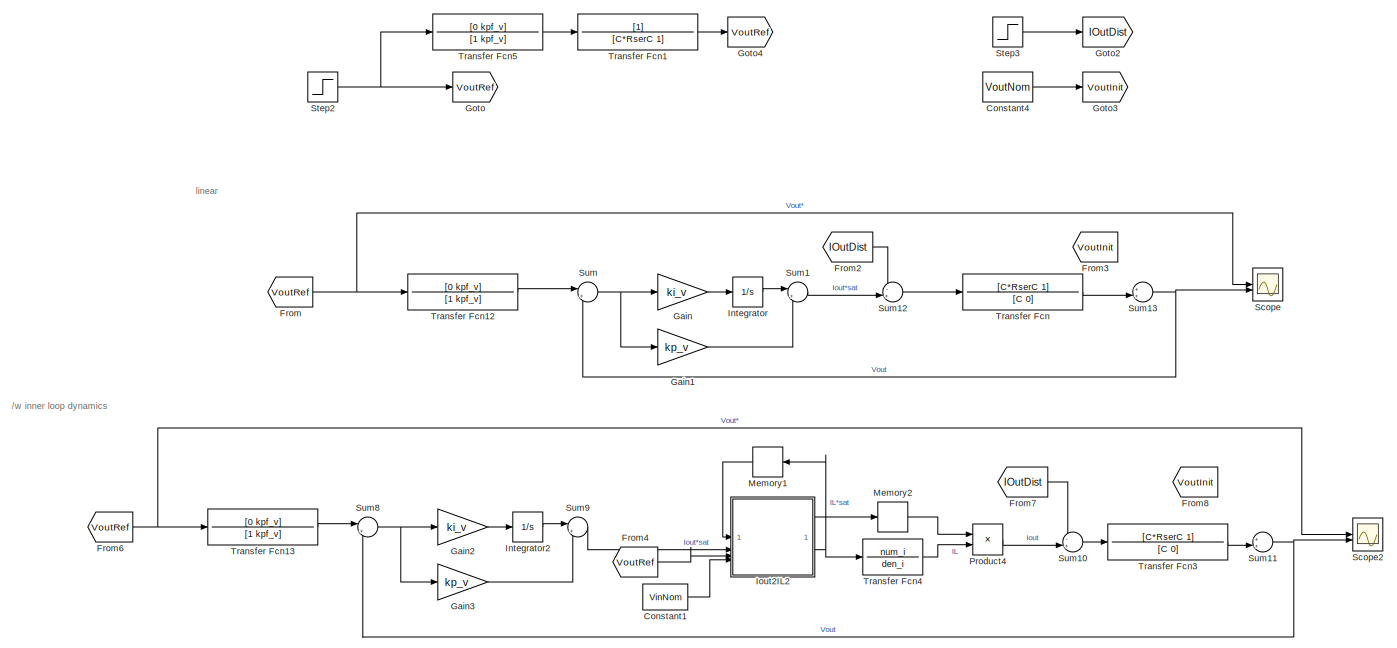
[diagram: root canvas - part 1/10, full width, top band]
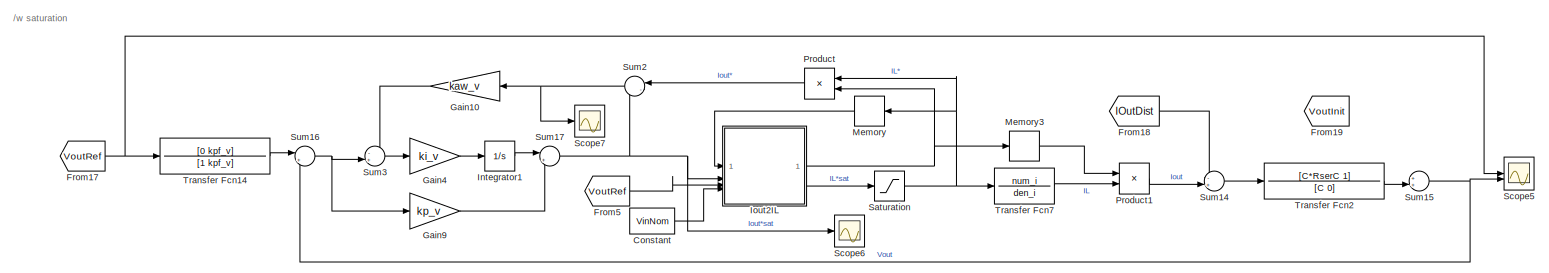
[diagram: root canvas - part 2/10, full width, middle band]
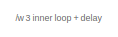
[diagram: root canvas - part 3/10, middle left region]
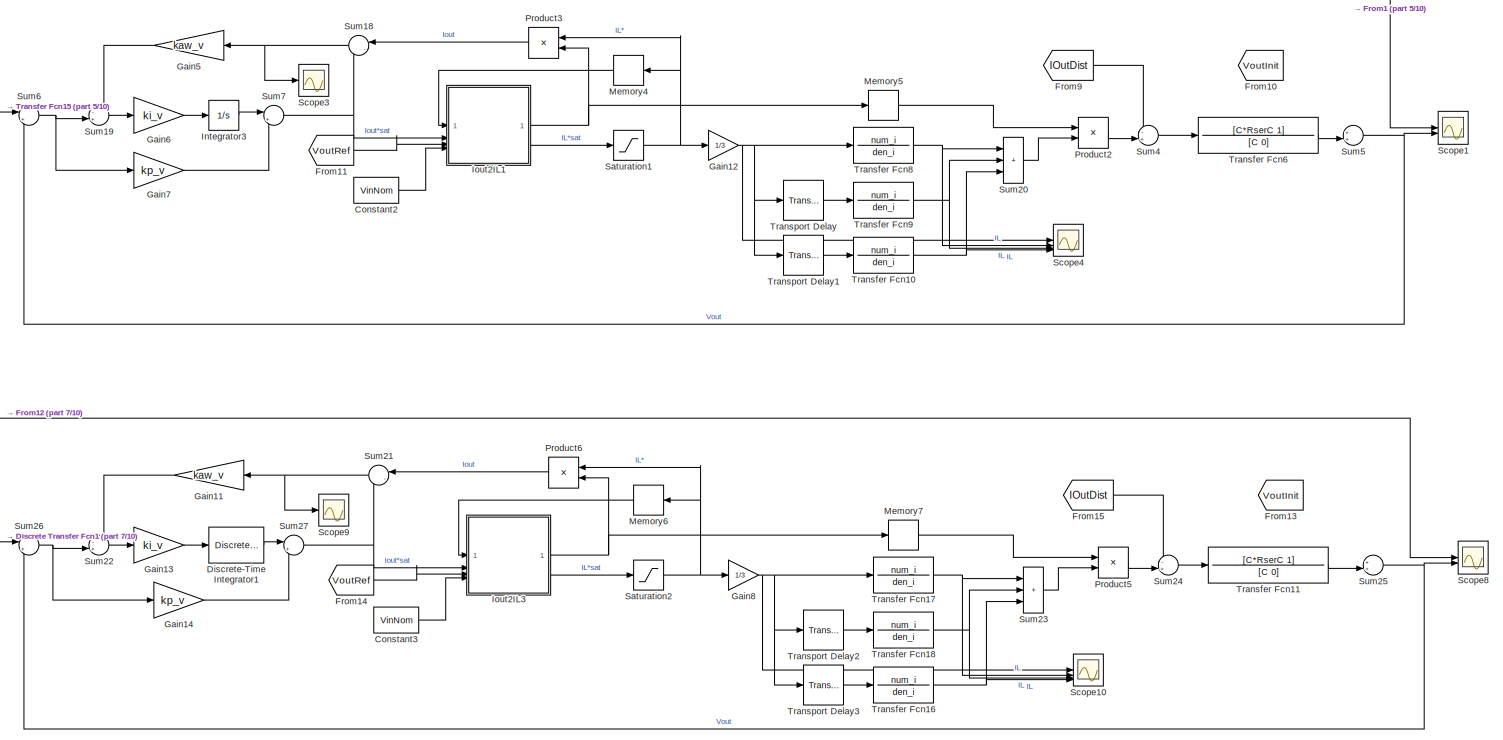
[diagram: root canvas - part 4/10, full width, middle band]
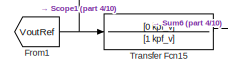
[diagram: root canvas - part 5/10, middle left region]
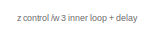
[diagram: root canvas - part 6/10, middle left region]
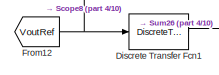
[diagram: root canvas - part 7/10, bottom left region]
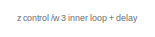
[diagram: root canvas - part 8/10, bottom left region]
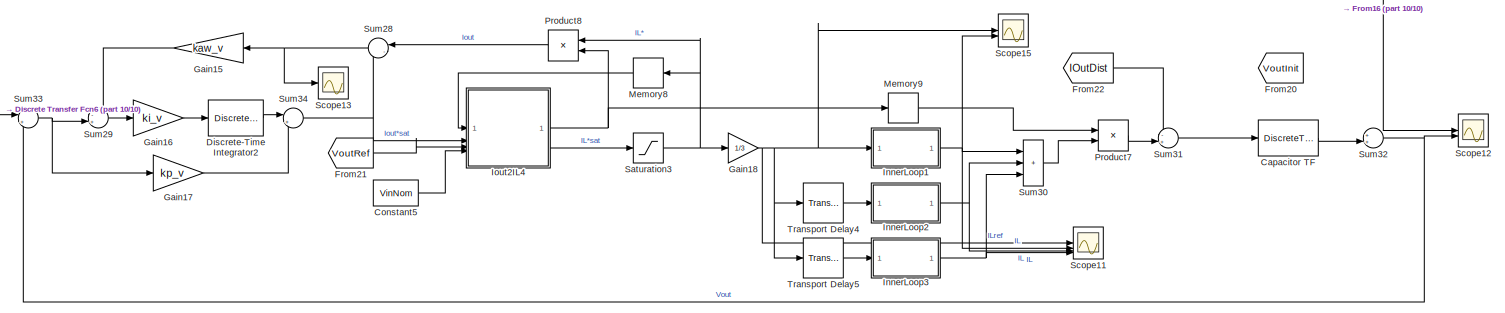
[diagram: root canvas - part 9/10, full width, bottom band]
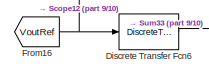
[diagram: root canvas - part 10/10, bottom left region]
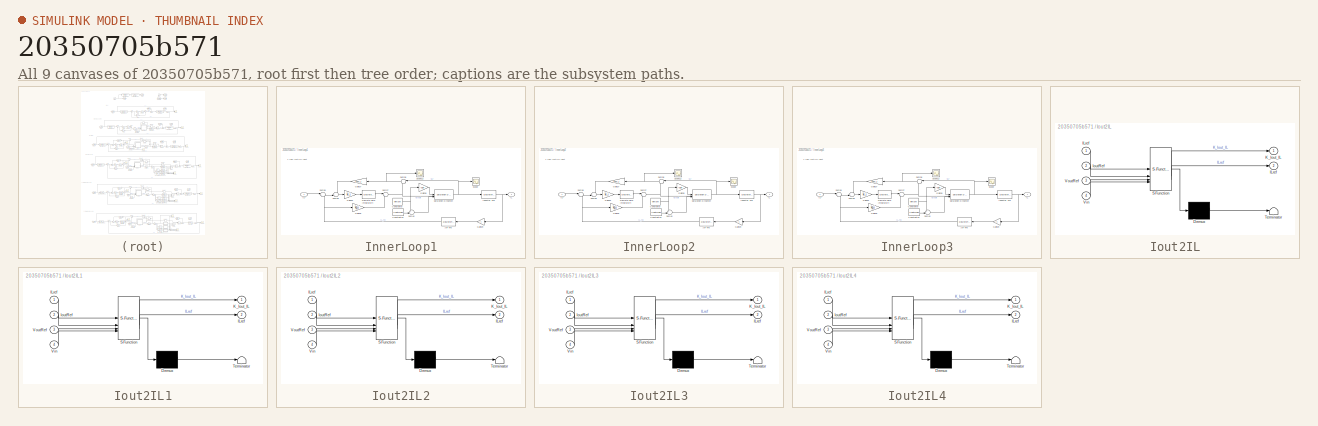
[diagram: thumbnail index - all 9 canvases of the model, root first then tree order]
MODEL slx_20350705b571
KIND model
CONFIG AbsTol = auto
CONFIG EnableMultiTasking = off
CONFIG FixedStep = Tstep
CONFIG MaxStep = auto
CONFIG MinStep = auto
CONFIG RelTol = 1e-3
CONFIG SampleTimeConstraint = Unconstrained
CONFIG SolverName = VariableStepAuto
CONFIG StartTime = 0.0
CONFIG StopTime = Tsim_outLoop
BLOCK [DiscreteTransferFcn] Capacitor TF
  Denominator = zden_plant_v
  InputPortMap = u0
  Numerator = znum_plant_v
BLOCK [Constant] Constant
  Value = VinNom
BLOCK [Constant] Constant1
  Value = VinNom
BLOCK [Constant] Constant2
  Value = VinNom
BLOCK [Constant] Constant3
  Value = VinNom
BLOCK [Constant] Constant4
  Value = VoutNom
BLOCK [Constant] Constant5
  Value = VinNom
BLOCK [DiscreteTransferFcn] Discrete Transfer Fcn1
  Denominator = zden_pf_v
  InputPortMap = u0
  Numerator = znum_pf_v
BLOCK [DiscreteTransferFcn] Discrete Transfer Fcn6
  Denominator = zden_pf_v
  InputPortMap = u0
  Numerator = znum_pf_v
BLOCK [DiscreteIntegrator] Discrete-Time Integrator1
  ICPrevOutput = DiscIntNeverNeededParam
  ICPrevScaledInput = DiscIntNeverNeededParam
  InitialConditionSetting = Auto
  IntegratorMethod = Integration: Trapezoidal
  SampleTime = Tsw
BLOCK [DiscreteIntegrator] Discrete-Time Integrator2
  ICPrevOutput = DiscIntNeverNeededParam
  ICPrevScaledInput = DiscIntNeverNeededParam
  InitialConditionSetting = Auto
  IntegratorMethod = Integration: Trapezoidal
  SampleTime = Tsw
BLOCK [From] From
  GotoTag = VoutRef
BLOCK [From] From1
  GotoTag = VoutRef
BLOCK [From] From10
  GotoTag = VoutInit
BLOCK [From] From11
  GotoTag = VoutRef
BLOCK [From] From12
  GotoTag = VoutRef
BLOCK [From] From13
  GotoTag = VoutInit
BLOCK [From] From14
  GotoTag = VoutRef
BLOCK [From] From15
  GotoTag = IOutDist
BLOCK [From] From16
  GotoTag = VoutRef
BLOCK [From] From17
  GotoTag = VoutRef
BLOCK [From] From18
  GotoTag = IOutDist
BLOCK [From] From19
  GotoTag = VoutInit
BLOCK [From] From2
  GotoTag = IOutDist
BLOCK [From] From20
  GotoTag = VoutInit
BLOCK [From] From21
  GotoTag = VoutRef
BLOCK [From] From22
  GotoTag = IOutDist
BLOCK [From] From3
  GotoTag = VoutInit
BLOCK [From] From4
  GotoTag = VoutRef
BLOCK [From] From5
  GotoTag = VoutRef
BLOCK [From] From6
  GotoTag = VoutRef
BLOCK [From] From7
  GotoTag = IOutDist
BLOCK [From] From8
  GotoTag = VoutInit
BLOCK [From] From9
  GotoTag = IOutDist
BLOCK [Gain] Gain
  Gain = ki_v
BLOCK [Gain] Gain1
  Gain = kp_v
BLOCK [Gain] Gain10
  Gain = kaw_v
  NameLocation = top
BLOCK [Gain] Gain11
  Gain = kaw_v
  NameLocation = top
BLOCK [Gain] Gain12
  Gain = 1/3
BLOCK [Gain] Gain13
  Gain = ki_v
BLOCK [Gain] Gain14
  Gain = kp_v
BLOCK [Gain] Gain15
  Gain = kaw_v
  NameLocation = top
BLOCK [Gain] Gain16
  Gain = ki_v
BLOCK [Gain] Gain17
  Gain = kp_v
BLOCK [Gain] Gain18
  Gain = 1/3
BLOCK [Gain] Gain2
  Gain = ki_v
BLOCK [Gain] Gain3
  Gain = kp_v
BLOCK [Gain] Gain4
  Gain = ki_v
BLOCK [Gain] Gain5
  Gain = kaw_v
  NameLocation = top
BLOCK [Gain] Gain6
  Gain = ki_v
BLOCK [Gain] Gain7
  Gain = kp_v
BLOCK [Gain] Gain8
  Gain = 1/3
BLOCK [Gain] Gain9
  Gain = kp_v
BLOCK [Goto] Goto
  GotoTag = VoutRef
BLOCK [Goto] Goto2
  GotoTag = IOutDist
BLOCK [Goto] Goto3
  GotoTag = VoutInit
BLOCK [Goto] Goto4
  Commented = on
  GotoTag = VoutRef
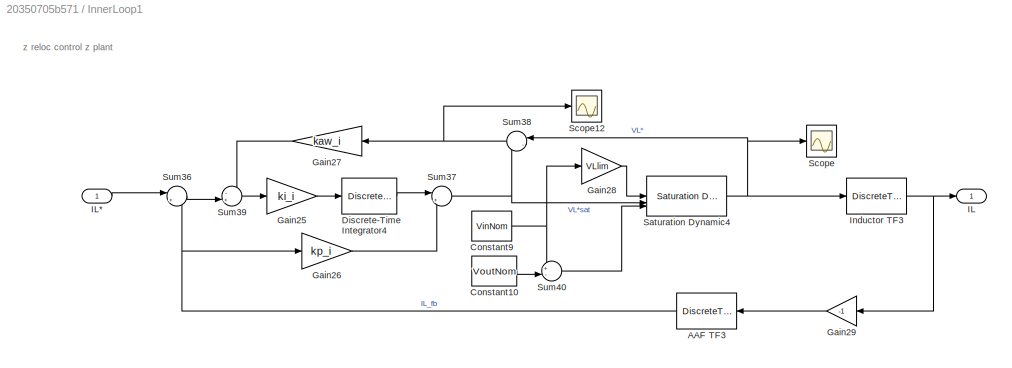
BLOCK [SubSystem] InnerLoop1
BLOCK [DiscreteTransferFcn] InnerLoop1/AAF TF3
  Denominator = zden_aaf
  InputPortMap = u0
  NameLocation = top
  Numerator = znum_aaf
BLOCK [Constant] InnerLoop1/Constant10
  Value = VoutNom
BLOCK [Constant] InnerLoop1/Constant9
  Value = VinNom
BLOCK [DiscreteIntegrator] InnerLoop1/Discrete-Time Integrator4
  ICPrevOutput = DiscIntNeverNeededParam
  ICPrevScaledInput = DiscIntNeverNeededParam
  InitialConditionSetting = Auto
  IntegratorMethod = Integration: Trapezoidal
  SampleTime = Tsw
BLOCK [Gain] InnerLoop1/Gain25
  Gain = ki_i
BLOCK [Gain] InnerLoop1/Gain26
  Gain = kp_i
BLOCK [Gain] InnerLoop1/Gain27
  Gain = kaw_i
  NameLocation = top
BLOCK [Gain] InnerLoop1/Gain28
  Gain = VLlim
BLOCK [Gain] InnerLoop1/Gain29
  Gain = -1
  NameLocation = top
BLOCK [Outport] InnerLoop1/IL
BLOCK [Inport] InnerLoop1/IL*
BLOCK [DiscreteTransferFcn] InnerLoop1/Inductor TF3
  Denominator = zden_plant_i
  InputPortMap = u0
  Numerator = znum_plant_i
BLOCK [Reference] InnerLoop1/Saturation Dynamic4  REF=simulink/Discontinuities/Saturation
Dynamic
  SourceBlock = simulink/Discontinuities/Saturation\nDynamic
  SourceType = Saturation Dynamic
BLOCK [Scope] InnerLoop1/Scope
  Floating = off
  NumInputPorts = 1
  ScopeSpecificationString = Simulink.scopes.TimeScopeBlockCfg('CurrentConfiguration', extmgr.ConfigurationSet(extmgr.Configuration('Core','General UI',true),extmgr.Configuration('Core','Source UI',true),extmgr.Configuration('Sources','WiredSimulink',true,'DataLoggingVariableName','ScopeData11'),extmgr.Configuration('Visuals','Time Domain',true,'SerializedDisplays',{struct('MinYLimReal','-2','MaxYLimReal','9','YLabelReal','',...<+1471ch>  <repeated x3 — deduplicated; at blocks: Scope>
BLOCK [Scope] InnerLoop1/Scope12
  Floating = off
  NumInputPorts = 1
  ScopeSpecificationString = Simulink.scopes.TimeScopeBlockCfg('CurrentConfiguration', extmgr.ConfigurationSet(extmgr.Configuration('Core','General UI',true),extmgr.Configuration('Core','Source UI',true),extmgr.Configuration('Sources','WiredSimulink',true,'DataLoggingVariableName','ScopeData9'),extmgr.Configuration('Visuals','Time Domain',true,'SerializedDisplays',{struct('MinYLimReal','-0.000000000000000011','MaxYLimReal','0...<+1557ch>  <repeated x3 — deduplicated; at blocks: Scope12>
BLOCK [Sum] InnerLoop1/Sum36
  Inputs = |+-
BLOCK [Sum] InnerLoop1/Sum37
  Inputs = |+-
BLOCK [Sum] InnerLoop1/Sum38
  Inputs = |-+
  NameLocation = top
BLOCK [Sum] InnerLoop1/Sum39
  Inputs = -+|
BLOCK [Sum] InnerLoop1/Sum40
  Inputs = +-|
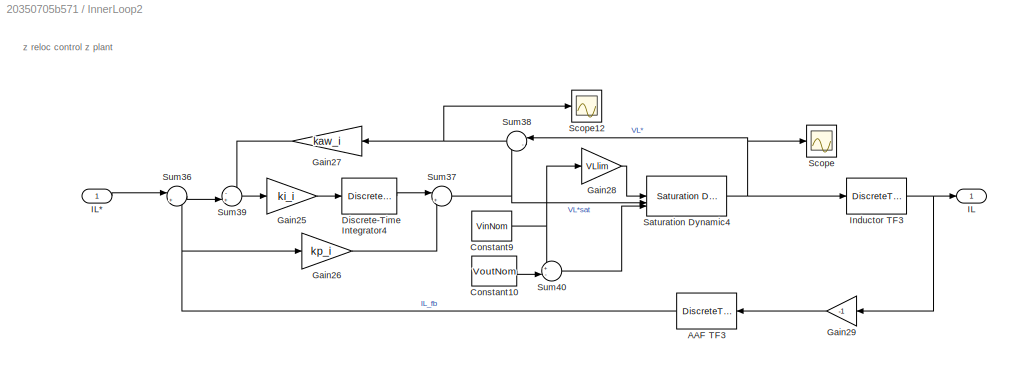
BLOCK [SubSystem] InnerLoop2
BLOCK [DiscreteTransferFcn] InnerLoop2/AAF TF3
  Denominator = zden_aaf
  InputPortMap = u0
  NameLocation = top
  Numerator = znum_aaf
BLOCK [Constant] InnerLoop2/Constant10
  Value = VoutNom
BLOCK [Constant] InnerLoop2/Constant9
  Value = VinNom
BLOCK [DiscreteIntegrator] InnerLoop2/Discrete-Time Integrator4
  ICPrevOutput = DiscIntNeverNeededParam
  ICPrevScaledInput = DiscIntNeverNeededParam
  InitialConditionSetting = Auto
  IntegratorMethod = Integration: Trapezoidal
  SampleTime = Tsw
BLOCK [Gain] InnerLoop2/Gain25
  Gain = ki_i
BLOCK [Gain] InnerLoop2/Gain26
  Gain = kp_i
BLOCK [Gain] InnerLoop2/Gain27
  Gain = kaw_i
  NameLocation = top
BLOCK [Gain] InnerLoop2/Gain28
  Gain = VLlim
BLOCK [Gain] InnerLoop2/Gain29
  Gain = -1
  NameLocation = top
BLOCK [Outport] InnerLoop2/IL
BLOCK [Inport] InnerLoop2/IL*
BLOCK [DiscreteTransferFcn] InnerLoop2/Inductor TF3
  Denominator = zden_plant_i
  InputPortMap = u0
  Numerator = znum_plant_i
BLOCK [Reference] InnerLoop2/Saturation Dynamic4  REF=simulink/Discontinuities/Saturation
Dynamic
  SourceBlock = simulink/Discontinuities/Saturation\nDynamic
  SourceType = Saturation Dynamic
BLOCK [Scope] InnerLoop2/Scope
  Floating = off
  NumInputPorts = 1
BLOCK [Scope] InnerLoop2/Scope12
  Floating = off
  NumInputPorts = 1
BLOCK [Sum] InnerLoop2/Sum36
  Inputs = |+-
BLOCK [Sum] InnerLoop2/Sum37
  Inputs = |+-
BLOCK [Sum] InnerLoop2/Sum38
  Inputs = |-+
  NameLocation = top
BLOCK [Sum] InnerLoop2/Sum39
  Inputs = -+|
BLOCK [Sum] InnerLoop2/Sum40
  Inputs = +-|
BLOCK [SubSystem] InnerLoop3
BLOCK [DiscreteTransferFcn] InnerLoop3/AAF TF3
  Denominator = zden_aaf
  InputPortMap = u0
  NameLocation = top
  Numerator = znum_aaf
BLOCK [Constant] InnerLoop3/Constant10
  Value = VoutNom
BLOCK [Constant] InnerLoop3/Constant9
  Value = VinNom
BLOCK [DiscreteIntegrator] InnerLoop3/Discrete-Time Integrator4
  ICPrevOutput = DiscIntNeverNeededParam
  ICPrevScaledInput = DiscIntNeverNeededParam
  InitialConditionSetting = Auto
  IntegratorMethod = Integration: Trapezoidal
  SampleTime = Tsw
BLOCK [Gain] InnerLoop3/Gain25
  Gain = ki_i
BLOCK [Gain] InnerLoop3/Gain26
  Gain = kp_i
BLOCK [Gain] InnerLoop3/Gain27
  Gain = kaw_i
  NameLocation = top
BLOCK [Gain] InnerLoop3/Gain28
  Gain = VLlim
BLOCK [Gain] InnerLoop3/Gain29
  Gain = -1
  NameLocation = top
BLOCK [Outport] InnerLoop3/IL
BLOCK [Inport] InnerLoop3/IL*
BLOCK [DiscreteTransferFcn] InnerLoop3/Inductor TF3
  Denominator = zden_plant_i
  InputPortMap = u0
  Numerator = znum_plant_i
BLOCK [Reference] InnerLoop3/Saturation Dynamic4  REF=simulink/Discontinuities/Saturation
Dynamic
  SourceBlock = simulink/Discontinuities/Saturation\nDynamic
  SourceType = Saturation Dynamic
BLOCK [Scope] InnerLoop3/Scope
  Floating = off
  NumInputPorts = 1
BLOCK [Scope] InnerLoop3/Scope12
  Floating = off
  NumInputPorts = 1
BLOCK [Sum] InnerLoop3/Sum36
  Inputs = |+-
BLOCK [Sum] InnerLoop3/Sum37
  Inputs = |+-
BLOCK [Sum] InnerLoop3/Sum38
  Inputs = |-+
  NameLocation = top
BLOCK [Sum] InnerLoop3/Sum39
  Inputs = -+|
BLOCK [Sum] InnerLoop3/Sum40
  Inputs = +-|
BLOCK [Integrator] Integrator
BLOCK [Integrator] Integrator1
BLOCK [Integrator] Integrator2
BLOCK [Integrator] Integrator3
BLOCK [SubSystem] Iout2IL
  ErrorFcn = Stateflow.Translate.translate
  PermitHierarchicalResolution = ExplicitOnly
  SFBlockType = MATLAB Function
  TreatAsAtomicUnit = on
BLOCK [Demux] Iout2IL/ Demux 
  Outputs = 1
BLOCK [S-Function] Iout2IL/ SFunction 
  EnableBusSupport = on
  FunctionName = sf_sfun
  Parameters = RserL
  PortCounts = [4 3]
  SFcnIsStateOwnerBlock = off
  SFunctionDeploymentMode = off
  Tag = Stateflow S-Function 3
BLOCK [Terminator] Iout2IL/ Terminator 
BLOCK [Outport] Iout2IL/ILref
  Port = 2
  VectorParamsAs1DForOutWhenUnconnected = off
BLOCK [Inport] Iout2IL/ILref 
BLOCK [Inport] Iout2IL/IoutRef
  Port = 2
BLOCK [Outport] Iout2IL/K_Iout_IL
  VectorParamsAs1DForOutWhenUnconnected = off
BLOCK [Inport] Iout2IL/Vin
  Port = 4
BLOCK [Inport] Iout2IL/VoutRef
  Port = 3
BLOCK [SubSystem] Iout2IL1
  ErrorFcn = Stateflow.Translate.translate
  PermitHierarchicalResolution = ExplicitOnly
  SFBlockType = MATLAB Function
  TreatAsAtomicUnit = on
BLOCK [Demux] Iout2IL1/ Demux 
  Outputs = 1
BLOCK [S-Function] Iout2IL1/ SFunction 
  EnableBusSupport = on
  FunctionName = sf_sfun
  Parameters = RserL
  PortCounts = [4 3]
  SFcnIsStateOwnerBlock = off
  SFunctionDeploymentMode = off
  Tag = Stateflow S-Function 1
BLOCK [Terminator] Iout2IL1/ Terminator 
BLOCK [Outport] Iout2IL1/ILref
  Port = 2
  VectorParamsAs1DForOutWhenUnconnected = off
BLOCK [Inport] Iout2IL1/ILref 
BLOCK [Inport] Iout2IL1/IoutRef
  Port = 2
BLOCK [Outport] Iout2IL1/K_Iout_IL
  VectorParamsAs1DForOutWhenUnconnected = off
BLOCK [Inport] Iout2IL1/Vin
  Port = 4
BLOCK [Inport] Iout2IL1/VoutRef
  Port = 3
BLOCK [SubSystem] Iout2IL2
  ErrorFcn = Stateflow.Translate.translate
  PermitHierarchicalResolution = ExplicitOnly
  SFBlockType = MATLAB Function
  TreatAsAtomicUnit = on
BLOCK [Demux] Iout2IL2/ Demux 
  Outputs = 1
BLOCK [S-Function] Iout2IL2/ SFunction 
  EnableBusSupport = on
  FunctionName = sf_sfun
  Parameters = RserL
  PortCounts = [4 3]
  SFcnIsStateOwnerBlock = off
  SFunctionDeploymentMode = off
  Tag = Stateflow S-Function 2
BLOCK [Terminator] Iout2IL2/ Terminator 
BLOCK [Outport] Iout2IL2/ILref
  Port = 2
  VectorParamsAs1DForOutWhenUnconnected = off
BLOCK [Inport] Iout2IL2/ILref 
BLOCK [Inport] Iout2IL2/IoutRef
  Port = 2
BLOCK [Outport] Iout2IL2/K_Iout_IL
  VectorParamsAs1DForOutWhenUnconnected = off
BLOCK [Inport] Iout2IL2/Vin
  Port = 4
BLOCK [Inport] Iout2IL2/VoutRef
  Port = 3
BLOCK [SubSystem] Iout2IL3
  ErrorFcn = Stateflow.Translate.translate
  PermitHierarchicalResolution = ExplicitOnly
  SFBlockType = MATLAB Function
  TreatAsAtomicUnit = on
BLOCK [Demux] Iout2IL3/ Demux 
  Outputs = 1
BLOCK [S-Function] Iout2IL3/ SFunction 
  EnableBusSupport = on
  FunctionName = sf_sfun
  Parameters = RserL
  PortCounts = [4 3]
  SFcnIsStateOwnerBlock = off
  SFunctionDeploymentMode = off
  Tag = Stateflow S-Function 4
BLOCK [Terminator] Iout2IL3/ Terminator 
BLOCK [Outport] Iout2IL3/ILref
  Port = 2
  VectorParamsAs1DForOutWhenUnconnected = off
BLOCK [Inport] Iout2IL3/ILref 
BLOCK [Inport] Iout2IL3/IoutRef
  Port = 2
BLOCK [Outport] Iout2IL3/K_Iout_IL
  VectorParamsAs1DForOutWhenUnconnected = off
BLOCK [Inport] Iout2IL3/Vin
  Port = 4
BLOCK [Inport] Iout2IL3/VoutRef
  Port = 3
BLOCK [SubSystem] Iout2IL4
  ErrorFcn = Stateflow.Translate.translate
  PermitHierarchicalResolution = ExplicitOnly
  SFBlockType = MATLAB Function
  TreatAsAtomicUnit = on
BLOCK [Demux] Iout2IL4/ Demux 
  Outputs = 1
BLOCK [S-Function] Iout2IL4/ SFunction 
  EnableBusSupport = on
  FunctionName = sf_sfun
  Parameters = RserL
  PortCounts = [4 3]
  SFcnIsStateOwnerBlock = off
  SFunctionDeploymentMode = off
  Tag = Stateflow S-Function 5
BLOCK [Terminator] Iout2IL4/ Terminator 
BLOCK [Outport] Iout2IL4/ILref
  Port = 2
  VectorParamsAs1DForOutWhenUnconnected = off
BLOCK [Inport] Iout2IL4/ILref 
BLOCK [Inport] Iout2IL4/IoutRef
  Port = 2
BLOCK [Outport] Iout2IL4/K_Iout_IL
  VectorParamsAs1DForOutWhenUnconnected = off
BLOCK [Inport] Iout2IL4/Vin
  Port = 4
BLOCK [Inport] Iout2IL4/VoutRef
  Port = 3
BLOCK [Memory] Memory
  NameLocation = top
BLOCK [Memory] Memory1
BLOCK [Memory] Memory2
  InitialCondition = 1
  NameLocation = top
BLOCK [Memory] Memory3
  InitialCondition = 1
  NameLocation = top
BLOCK [Memory] Memory4
  NameLocation = top
BLOCK [Memory] Memory5
  InitialCondition = 1
  NameLocation = top
BLOCK [Memory] Memory6
  NameLocation = top
BLOCK [Memory] Memory7
  InitialCondition = 1
  NameLocation = top
BLOCK [Memory] Memory8
  NameLocation = top
BLOCK [Memory] Memory9
  InitialCondition = 1
  NameLocation = top
BLOCK [Product] Product
  NameLocation = top
BLOCK [Product] Product1
BLOCK [Product] Product2
BLOCK [Product] Product3
  NameLocation = top
BLOCK [Product] Product4
BLOCK [Product] Product5
BLOCK [Product] Product6
  NameLocation = top
BLOCK [Product] Product7
BLOCK [Product] Product8
  NameLocation = top
BLOCK [Saturate] Saturation
  LowerLimit = -ILmax
  UpperLimit = ILmax
BLOCK [Saturate] Saturation1
  LowerLimit = -ILmax
  UpperLimit = ILmax
BLOCK [Saturate] Saturation2
  LowerLimit = -ILmax
  UpperLimit = ILmax
BLOCK [Saturate] Saturation3
  LowerLimit = -ILmax
  UpperLimit = ILmax
BLOCK [Scope] Scope
  Floating = off
  NumInputPorts = 2
  ScopeSpecificationString = Simulink.scopes.TimeScopeBlockCfg('CurrentConfiguration', extmgr.ConfigurationSet(extmgr.Configuration('Core','General UI',true),extmgr.Configuration('Core','Source UI',true),extmgr.Configuration('Sources','WiredSimulink',true,'DataLoggingVariableName','ScopeData1'),extmgr.Configuration('Visuals','Time Domain',true,'SerializedDisplays',{struct('MinYLimReal','-6.24693','MaxYLimReal','56.22241','YLa...<+1446ch>
BLOCK [Scope] Scope1
  Floating = off
  NumInputPorts = 2
  ScopeSpecificationString = Simulink.scopes.TimeScopeBlockCfg('CurrentConfiguration', extmgr.ConfigurationSet(extmgr.Configuration('Core','General UI',true),extmgr.Configuration('Core','Source UI',true),extmgr.Configuration('Sources','WiredSimulink',true,'DataLoggingVariableName','ScopeData1'),extmgr.Configuration('Visuals','Time Domain',true,'SerializedDisplays',{struct('MinYLimReal','-6.45366','MaxYLimReal','58.0829','YLab...<+1531ch>
BLOCK [Scope] Scope10
  Floating = off
  NumInputPorts = 4
  ScopeSpecificationString = Simulink.scopes.TimeScopeBlockCfg('CurrentConfiguration', extmgr.ConfigurationSet(extmgr.Configuration('Core','General UI',true),extmgr.Configuration('Core','Source UI',true),extmgr.Configuration('Sources','WiredSimulink',true,'DataLoggingVariableName','ScopeData1'),extmgr.Configuration('Visuals','Time Domain',true,'SerializedDisplays',{struct('MinYLimReal','-0.0999','MaxYLimReal','0.77357','YLabe...<+1447ch>
BLOCK [Scope] Scope11
  Floating = off
  NumInputPorts = 4
  ScopeSpecificationString = Simulink.scopes.TimeScopeBlockCfg('CurrentConfiguration', extmgr.ConfigurationSet(extmgr.Configuration('Core','General UI',true),extmgr.Configuration('Core','Source UI',true),extmgr.Configuration('Sources','WiredSimulink',true,'DataLoggingVariableName','ScopeData4'),extmgr.Configuration('Visuals','Time Domain',true,'SerializedDisplays',{struct('MinYLimReal','-11518861928806719007186475254290325415...<+3957ch>
BLOCK [Scope] Scope12
  Floating = off
  NumInputPorts = 2
  ScopeSpecificationString = Simulink.scopes.TimeScopeBlockCfg('CurrentConfiguration', extmgr.ConfigurationSet(extmgr.Configuration('Core','General UI',true),extmgr.Configuration('Core','Source UI',true),extmgr.Configuration('Sources','WiredSimulink',true,'DataLoggingVariableName','ScopeData5'),extmgr.Configuration('Visuals','Time Domain',true,'SerializedDisplays',{struct('MinYLimReal','-6.44082','MaxYLimReal','57.96738','YLa...<+1534ch>
BLOCK [Scope] Scope13
  Floating = off
  NumInputPorts = 1
  ScopeSpecificationString = Simulink.scopes.TimeScopeBlockCfg('CurrentConfiguration', extmgr.ConfigurationSet(extmgr.Configuration('Core','General UI',true),extmgr.Configuration('Core','Source UI',true),extmgr.Configuration('Sources','WiredSimulink',true,'DataLoggingVariableName','ScopeData6'),extmgr.Configuration('Visuals','Time Domain',true,'SerializedDisplays',{struct('MinYLimReal','-0.00000000009','MaxYLimReal','0.000000...<+1620ch>
BLOCK [Scope] Scope15
  Floating = off
  NumInputPorts = 2
  ScopeSpecificationString = Simulink.scopes.TimeScopeBlockCfg('CurrentConfiguration', extmgr.ConfigurationSet(extmgr.Configuration('Core','General UI',true),extmgr.Configuration('Core','Source UI',true),extmgr.Configuration('Sources','WiredSimulink',true,'DataLoggingVariableName','ScopeData8'),extmgr.Configuration('Visuals','Time Domain',true,'SerializedDisplays',{struct('MinYLimReal','-0.27083','MaxYLimReal','1.50086','YLab...<+1501ch>
BLOCK [Scope] Scope2
  Floating = off
  NumInputPorts = 2
  ScopeSpecificationString = Simulink.scopes.TimeScopeBlockCfg('CurrentConfiguration', extmgr.ConfigurationSet(extmgr.Configuration('Core','General UI',true),extmgr.Configuration('Core','Source UI',true),extmgr.Configuration('Sources','WiredSimulink',true,'DataLoggingVariableName','ScopeData1'),extmgr.Configuration('Visuals','Time Domain',true,'SerializedDisplays',{struct('MinYLimReal','-6.29289','MaxYLimReal','56.63599','YLa...<+1446ch>
BLOCK [Scope] Scope3
  Floating = off
  NumInputPorts = 1
  ScopeSpecificationString = Simulink.scopes.TimeScopeBlockCfg('CurrentConfiguration', extmgr.ConfigurationSet(extmgr.Configuration('Core','General UI',true),extmgr.Configuration('Core','Source UI',true),extmgr.Configuration('Sources','WiredSimulink',true,'DataLoggingVariableName','ScopeData2'),extmgr.Configuration('Visuals','Time Domain',true,'SerializedDisplays',{struct('MinYLimReal','-0.0000000000000011','MaxYLimReal','0.0...<+1570ch>
BLOCK [Scope] Scope4
  Floating = off
  NumInputPorts = 4
  ScopeSpecificationString = Simulink.scopes.TimeScopeBlockCfg('CurrentConfiguration', extmgr.ConfigurationSet(extmgr.Configuration('Core','General UI',true),extmgr.Configuration('Core','Source UI',true),extmgr.Configuration('Sources','WiredSimulink',true,'DataLoggingVariableName','ScopeData3'),extmgr.Configuration('Visuals','Time Domain',true,'SerializedDisplays',{struct('MinYLimReal','-0.0999','MaxYLimReal','0.77357','YLabe...<+1447ch>
BLOCK [Scope] Scope5
  Floating = off
  NumInputPorts = 2
  ScopeSpecificationString = Simulink.scopes.TimeScopeBlockCfg('CurrentConfiguration', extmgr.ConfigurationSet(extmgr.Configuration('Core','General UI',true),extmgr.Configuration('Core','Source UI',true),extmgr.Configuration('Sources','WiredSimulink',true,'DataLoggingVariableName','ScopeData1'),extmgr.Configuration('Visuals','Time Domain',true,'SerializedDisplays',{struct('MinYLimReal','-6.30349','MaxYLimReal','56.73139','YLa...<+1454ch>
BLOCK [Scope] Scope6
  Floating = off
  NumInputPorts = 1
  ScopeSpecificationString = Simulink.scopes.TimeScopeBlockCfg('CurrentConfiguration', extmgr.ConfigurationSet(extmgr.Configuration('Core','General UI',true),extmgr.Configuration('Core','Source UI',true),extmgr.Configuration('Sources','WiredSimulink',true,'DataLoggingVariableName','ScopeData1'),extmgr.Configuration('Visuals','Time Domain',true,'SerializedDisplays',{struct('MinYLimReal','-4.58852','MaxYLimReal','21.01494','YLa...<+1371ch>
BLOCK [Scope] Scope7
  Floating = off
  NumInputPorts = 1
  ScopeSpecificationString = Simulink.scopes.TimeScopeBlockCfg('CurrentConfiguration', extmgr.ConfigurationSet(extmgr.Configuration('Core','General UI',true),extmgr.Configuration('Core','Source UI',true),extmgr.Configuration('Sources','WiredSimulink',true,'DataLoggingVariableName','ScopeData2'),extmgr.Configuration('Visuals','Time Domain',true,'SerializedDisplays',{struct('MinYLimReal','-0.0000000000000011','MaxYLimReal','0.0...<+1570ch>
BLOCK [Scope] Scope8
  Floating = off
  NumInputPorts = 2
  ScopeSpecificationString = Simulink.scopes.TimeScopeBlockCfg('CurrentConfiguration', extmgr.ConfigurationSet(extmgr.Configuration('Core','General UI',true),extmgr.Configuration('Core','Source UI',true),extmgr.Configuration('Sources','WiredSimulink',true,'DataLoggingVariableName','ScopeData2'),extmgr.Configuration('Visuals','Time Domain',true,'SerializedDisplays',{struct('MinYLimReal','-6.45768','MaxYLimReal','58.11909','YLa...<+1534ch>
BLOCK [Scope] Scope9
  Floating = off
  NumInputPorts = 1
  ScopeSpecificationString = Simulink.scopes.TimeScopeBlockCfg('CurrentConfiguration', extmgr.ConfigurationSet(extmgr.Configuration('Core','General UI',true),extmgr.Configuration('Core','Source UI',true),extmgr.Configuration('Sources','WiredSimulink',true,'DataLoggingVariableName','ScopeData3'),extmgr.Configuration('Visuals','Time Domain',true,'SerializedDisplays',{struct('MinYLimReal','-0.0000000000000011','MaxYLimReal','0.0...<+1570ch>
BLOCK [Step] Step2
  After = VoutNom
  Before = VinNom
  SampleTime = 0
  Time = 0.1
BLOCK [Step] Step3
  After = ILnom/3
  SampleTime = 0
  Time = 0.3
BLOCK [Sum] Sum
  Inputs = |+-
BLOCK [Sum] Sum1
  Inputs = |++
BLOCK [Sum] Sum10
  Inputs = -+|
BLOCK [Sum] Sum11
  Inputs = ++|
BLOCK [Sum] Sum12
  Inputs = -+|
BLOCK [Sum] Sum13
  Inputs = ++|
BLOCK [Sum] Sum14
  Inputs = -+|
BLOCK [Sum] Sum15
  Inputs = ++|
BLOCK [Sum] Sum16
  Inputs = |+-
BLOCK [Sum] Sum17
  Inputs = |++
BLOCK [Sum] Sum18
  Inputs = |-+
  NameLocation = top
BLOCK [Sum] Sum19
  Inputs = -+|
BLOCK [Sum] Sum2
  Inputs = |-+
  NameLocation = top
BLOCK [Sum] Sum20
  IconShape = rectangular
  Inputs = +++
BLOCK [Sum] Sum21
  Inputs = |-+
  NameLocation = top
BLOCK [Sum] Sum22
  Inputs = -+|
BLOCK [Sum] Sum23
  IconShape = rectangular
  Inputs = +++
BLOCK [Sum] Sum24
  Inputs = -+|
BLOCK [Sum] Sum25
  Inputs = ++|
BLOCK [Sum] Sum26
  Inputs = |+-
BLOCK [Sum] Sum27
  Inputs = |++
BLOCK [Sum] Sum28
  Inputs = |-+
  NameLocation = top
BLOCK [Sum] Sum29
  Inputs = -+|
BLOCK [Sum] Sum3
  Inputs = -+|
BLOCK [Sum] Sum30
  IconShape = rectangular
  Inputs = +++
BLOCK [Sum] Sum31
  Inputs = -+|
BLOCK [Sum] Sum32
  Inputs = ++|
BLOCK [Sum] Sum33
  Inputs = |+-
BLOCK [Sum] Sum34
  Inputs = |++
BLOCK [Sum] Sum4
  Inputs = -+|
BLOCK [Sum] Sum5
  Inputs = ++|
BLOCK [Sum] Sum6
  Inputs = |+-
BLOCK [Sum] Sum7
  Inputs = |++
BLOCK [Sum] Sum8
  Inputs = |+-
BLOCK [Sum] Sum9
  Inputs = |++
BLOCK [TransferFcn] Transfer Fcn
  Denominator = [C 0]
  Numerator = [C*RserC 1]
BLOCK [TransferFcn] Transfer Fcn1
  Commented = on
  Denominator = [C*RserC 1]
BLOCK [TransferFcn] Transfer Fcn10
  Denominator = den_i
  Numerator = num_i
BLOCK [TransferFcn] Transfer Fcn11
  Denominator = [C 0]
  Numerator = [C*RserC 1]
BLOCK [TransferFcn] Transfer Fcn12
  Denominator = [1 kpf_v]
  Numerator = [0 kpf_v]
BLOCK [TransferFcn] Transfer Fcn13
  Denominator = [1 kpf_v]
  Numerator = [0 kpf_v]
BLOCK [TransferFcn] Transfer Fcn14
  Denominator = [1 kpf_v]
  Numerator = [0 kpf_v]
BLOCK [TransferFcn] Transfer Fcn15
  Denominator = [1 kpf_v]
  Numerator = [0 kpf_v]
BLOCK [TransferFcn] Transfer Fcn16
  Denominator = den_i
  Numerator = num_i
BLOCK [TransferFcn] Transfer Fcn17
  Denominator = den_i
  Numerator = num_i
BLOCK [TransferFcn] Transfer Fcn18
  Denominator = den_i
  Numerator = num_i
BLOCK [TransferFcn] Transfer Fcn2
  Denominator = [C 0]
  Numerator = [C*RserC 1]
BLOCK [TransferFcn] Transfer Fcn3
  Denominator = [C 0]
  Numerator = [C*RserC 1]
BLOCK [TransferFcn] Transfer Fcn4
  Denominator = den_i
  Numerator = num_i
BLOCK [TransferFcn] Transfer Fcn5
  Commented = on
  Denominator = [1 kpf_v]
  Numerator = [0 kpf_v]
BLOCK [TransferFcn] Transfer Fcn6
  Denominator = [C 0]
  Numerator = [C*RserC 1]
BLOCK [TransferFcn] Transfer Fcn7
  Denominator = den_i
  Numerator = num_i
BLOCK [TransferFcn] Transfer Fcn8
  Denominator = den_i
  Numerator = num_i
BLOCK [TransferFcn] Transfer Fcn9
  Denominator = den_i
  Numerator = num_i
BLOCK [TransportDelay] Transport Delay
  DelayTime = Tsw/3
BLOCK [TransportDelay] Transport Delay1
  DelayTime = 2*Tsw/3
BLOCK [TransportDelay] Transport Delay2
  DelayTime = Tsw/3
BLOCK [TransportDelay] Transport Delay3
  DelayTime = 2*Tsw/3
BLOCK [TransportDelay] Transport Delay4
  DelayTime = Tsw/3
BLOCK [TransportDelay] Transport Delay5
  DelayTime = 2*Tsw/3
ANNOTATION (root): /w 3 inner loop + delay
ANNOTATION (root): /w inner loop dynamics
ANNOTATION (root): /w saturation
ANNOTATION (root): linear
ANNOTATION (root): z control /w 3 inner loop + delay
ANNOTATION InnerLoop1: z reloc control z plant
ANNOTATION InnerLoop2: z reloc control z plant
ANNOTATION InnerLoop3: z reloc control z plant
LINE Capacitor TF:1 -> Sum32:2
LINE Constant1:1 -> Iout2IL2:4
LINE Constant2:1 -> Iout2IL1:4
LINE Constant3:1 -> Iout2IL3:4
LINE Constant4:1 -> Goto3:1
LINE Constant5:1 -> Iout2IL4:4
LINE Constant:1 -> Iout2IL:4
LINE Discrete Transfer Fcn1:1 -> Sum26:1
LINE Discrete Transfer Fcn6:1 -> Sum33:1
LINE Discrete-Time Integrator1:1 -> Sum27:1
LINE Discrete-Time Integrator2:1 -> Sum34:1
LINE From11:1 -> Iout2IL1:3
NET From12:1 -> Discrete Transfer Fcn1:1, Scope8:1
LINE From14:1 -> Iout2IL3:3
LINE From15:1 -> Sum24:1
NET From16:1 -> Discrete Transfer Fcn6:1, Scope12:1
NET From17:1 -> Scope5:1, Transfer Fcn14:1
LINE From18:1 -> Sum14:1
NET From1:1 -> Scope1:1, Transfer Fcn15:1
LINE From21:1 -> Iout2IL4:3
LINE From22:1 -> Sum31:1
LINE From2:1 -> Sum12:1
LINE From4:1 -> Iout2IL2:3
LINE From5:1 -> Iout2IL:3
NET From6:1 -> Scope2:1, Transfer Fcn13:1
LINE From7:1 -> Sum10:1
LINE From9:1 -> Sum4:1
NET From:1 -> Scope:1, Transfer Fcn12:1
LINE Gain10:1 -> Sum3:1
LINE Gain11:1 -> Sum22:1
NET Gain12:1 -> Scope4:1, Transfer Fcn8:1, Transport Delay1:1, Transport Delay:1
LINE Gain13:1 -> Discrete-Time Integrator1:1
LINE Gain14:1 -> Sum27:2
LINE Gain15:1 -> Sum29:1
LINE Gain16:1 -> Discrete-Time Integrator2:1
LINE Gain17:1 -> Sum34:2
NET Gain18:1 -> InnerLoop1:1, Scope11:1, Scope15:1, Transport Delay4:1, Transport Delay5:1
LINE Gain1:1 -> Sum1:2
LINE Gain2:1 -> Integrator2:1
LINE Gain3:1 -> Sum9:2
LINE Gain4:1 -> Integrator1:1
LINE Gain5:1 -> Sum19:1
LINE Gain6:1 -> Integrator3:1
LINE Gain7:1 -> Sum7:2
NET Gain8:1 -> Scope10:1, Transfer Fcn17:1, Transport Delay2:1, Transport Delay3:1
LINE Gain9:1 -> Sum17:2
LINE Gain:1 -> Integrator:1
NET InnerLoop1/AAF TF3:1 -> InnerLoop1/Gain26:1, InnerLoop1/Sum36:2
LINE InnerLoop1/Constant10:1 -> InnerLoop1/Sum40:2
NET InnerLoop1/Constant9:1 -> InnerLoop1/Gain28:1, InnerLoop1/Sum40:1
LINE InnerLoop1/Discrete-Time Integrator4:1 -> InnerLoop1/Sum37:1
LINE InnerLoop1/Gain25:1 -> InnerLoop1/Discrete-Time Integrator4:1
LINE InnerLoop1/Gain26:1 -> InnerLoop1/Sum37:2
LINE InnerLoop1/Gain27:1 -> InnerLoop1/Sum39:1
LINE InnerLoop1/Gain28:1 -> InnerLoop1/Saturation Dynamic4:1
LINE InnerLoop1/Gain29:1 -> InnerLoop1/AAF TF3:1
LINE InnerLoop1/IL*:1 -> InnerLoop1/Sum36:1
NET InnerLoop1/Inductor TF3:1 -> InnerLoop1/Gain29:1, InnerLoop1/IL:1
NET InnerLoop1/Saturation Dynamic4:1 -> InnerLoop1/Inductor TF3:1, InnerLoop1/Scope:1, InnerLoop1/Sum38:1
LINE InnerLoop1/Sum36:1 -> InnerLoop1/Sum39:2
NET InnerLoop1/Sum37:1 -> InnerLoop1/Saturation Dynamic4:2, InnerLoop1/Sum38:2
NET InnerLoop1/Sum38:1 -> InnerLoop1/Gain27:1, InnerLoop1/Scope12:1
LINE InnerLoop1/Sum39:1 -> InnerLoop1/Gain25:1
LINE InnerLoop1/Sum40:1 -> InnerLoop1/Saturation Dynamic4:3
NET InnerLoop1:1 -> Scope11:2, Scope15:2, Sum30:1
NET InnerLoop2/AAF TF3:1 -> InnerLoop2/Gain26:1, InnerLoop2/Sum36:2
LINE InnerLoop2/Constant10:1 -> InnerLoop2/Sum40:2
NET InnerLoop2/Constant9:1 -> InnerLoop2/Gain28:1, InnerLoop2/Sum40:1
LINE InnerLoop2/Discrete-Time Integrator4:1 -> InnerLoop2/Sum37:1
LINE InnerLoop2/Gain25:1 -> InnerLoop2/Discrete-Time Integrator4:1
LINE InnerLoop2/Gain26:1 -> InnerLoop2/Sum37:2
LINE InnerLoop2/Gain27:1 -> InnerLoop2/Sum39:1
LINE InnerLoop2/Gain28:1 -> InnerLoop2/Saturation Dynamic4:1
LINE InnerLoop2/Gain29:1 -> InnerLoop2/AAF TF3:1
LINE InnerLoop2/IL*:1 -> InnerLoop2/Sum36:1
NET InnerLoop2/Inductor TF3:1 -> InnerLoop2/Gain29:1, InnerLoop2/IL:1
NET InnerLoop2/Saturation Dynamic4:1 -> InnerLoop2/Inductor TF3:1, InnerLoop2/Scope:1, InnerLoop2/Sum38:1
LINE InnerLoop2/Sum36:1 -> InnerLoop2/Sum39:2
NET InnerLoop2/Sum37:1 -> InnerLoop2/Saturation Dynamic4:2, InnerLoop2/Sum38:2
NET InnerLoop2/Sum38:1 -> InnerLoop2/Gain27:1, InnerLoop2/Scope12:1
LINE InnerLoop2/Sum39:1 -> InnerLoop2/Gain25:1
LINE InnerLoop2/Sum40:1 -> InnerLoop2/Saturation Dynamic4:3
NET InnerLoop2:1 -> Scope11:3, Sum30:2
NET InnerLoop3/AAF TF3:1 -> InnerLoop3/Gain26:1, InnerLoop3/Sum36:2
LINE InnerLoop3/Constant10:1 -> InnerLoop3/Sum40:2
NET InnerLoop3/Constant9:1 -> InnerLoop3/Gain28:1, InnerLoop3/Sum40:1
LINE InnerLoop3/Discrete-Time Integrator4:1 -> InnerLoop3/Sum37:1
LINE InnerLoop3/Gain25:1 -> InnerLoop3/Discrete-Time Integrator4:1
LINE InnerLoop3/Gain26:1 -> InnerLoop3/Sum37:2
LINE InnerLoop3/Gain27:1 -> InnerLoop3/Sum39:1
LINE InnerLoop3/Gain28:1 -> InnerLoop3/Saturation Dynamic4:1
LINE InnerLoop3/Gain29:1 -> InnerLoop3/AAF TF3:1
LINE InnerLoop3/IL*:1 -> InnerLoop3/Sum36:1
NET InnerLoop3/Inductor TF3:1 -> InnerLoop3/Gain29:1, InnerLoop3/IL:1
NET InnerLoop3/Saturation Dynamic4:1 -> InnerLoop3/Inductor TF3:1, InnerLoop3/Scope:1, InnerLoop3/Sum38:1
LINE InnerLoop3/Sum36:1 -> InnerLoop3/Sum39:2
NET InnerLoop3/Sum37:1 -> InnerLoop3/Saturation Dynamic4:2, InnerLoop3/Sum38:2
NET InnerLoop3/Sum38:1 -> InnerLoop3/Gain27:1, InnerLoop3/Scope12:1
LINE InnerLoop3/Sum39:1 -> InnerLoop3/Gain25:1
LINE InnerLoop3/Sum40:1 -> InnerLoop3/Saturation Dynamic4:3
NET InnerLoop3:1 -> Scope11:4, Sum30:3
LINE Integrator1:1 -> Sum17:1
LINE Integrator2:1 -> Sum9:1
LINE Integrator3:1 -> Sum7:1
LINE Integrator:1 -> Sum1:1
NET Iout2IL1:1 -> Memory5:1, Product3:2
LINE Iout2IL1:2 -> Saturation1:1
LINE Iout2IL2:1 -> Memory2:1
NET Iout2IL2:2 -> Memory1:1, Transfer Fcn4:1
NET Iout2IL3:1 -> Memory7:1, Product6:2
LINE Iout2IL3:2 -> Saturation2:1
NET Iout2IL4:1 -> Memory9:1, Product8:2
LINE Iout2IL4:2 -> Saturation3:1
NET Iout2IL:1 -> Memory3:1, Product:2
LINE Iout2IL:2 -> Saturation:1
LINE Memory1:1 -> Iout2IL2:1
LINE Memory2:1 -> Product4:1
LINE Memory3:1 -> Product1:1
LINE Memory4:1 -> Iout2IL1:1
LINE Memory5:1 -> Product2:1
LINE Memory6:1 -> Iout2IL3:1
LINE Memory7:1 -> Product5:1
LINE Memory8:1 -> Iout2IL4:1
LINE Memory9:1 -> Product7:1
LINE Memory:1 -> Iout2IL:1
LINE Product1:1 -> Sum14:2
LINE Product2:1 -> Sum4:2
LINE Product3:1 -> Sum18:1
LINE Product4:1 -> Sum10:2
LINE Product5:1 -> Sum24:2
LINE Product6:1 -> Sum21:1
LINE Product7:1 -> Sum31:2
LINE Product8:1 -> Sum28:1
LINE Product:1 -> Sum2:1
NET Saturation1:1 -> Gain12:1, Memory4:1, Product3:1
NET Saturation2:1 -> Gain8:1, Memory6:1, Product6:1
NET Saturation3:1 -> Gain18:1, Memory8:1, Product8:1
NET Saturation:1 -> Memory:1, Product:1, Transfer Fcn7:1
NET Step2:1 -> Goto:1, Transfer Fcn5:1
LINE Step3:1 -> Goto2:1
LINE Sum10:1 -> Transfer Fcn3:1
NET Sum11:1 -> Scope2:2, Sum8:2
LINE Sum12:1 -> Transfer Fcn:1
NET Sum13:1 -> Scope:2, Sum:2
LINE Sum14:1 -> Transfer Fcn2:1
NET Sum15:1 -> Scope5:2, Sum16:2
NET Sum16:1 -> Gain9:1, Sum3:2
NET Sum17:1 -> Iout2IL:2, Scope6:1, Sum2:2
NET Sum18:1 -> Gain5:1, Scope3:1
LINE Sum19:1 -> Gain6:1
LINE Sum1:1 -> Sum12:2
LINE Sum20:1 -> Product2:2
NET Sum21:1 -> Gain11:1, Scope9:1
LINE Sum22:1 -> Gain13:1
LINE Sum23:1 -> Product5:2
LINE Sum24:1 -> Transfer Fcn11:1
NET Sum25:1 -> Scope8:2, Sum26:2
NET Sum26:1 -> Gain14:1, Sum22:2
NET Sum27:1 -> Iout2IL3:2, Sum21:2
NET Sum28:1 -> Gain15:1, Scope13:1
LINE Sum29:1 -> Gain16:1
NET Sum2:1 -> Gain10:1, Scope7:1
LINE Sum30:1 -> Product7:2
LINE Sum31:1 -> Capacitor TF:1
NET Sum32:1 -> Scope12:2, Sum33:2
NET Sum33:1 -> Gain17:1, Sum29:2
NET Sum34:1 -> Iout2IL4:2, Sum28:2
LINE Sum3:1 -> Gain4:1
LINE Sum4:1 -> Transfer Fcn6:1
NET Sum5:1 -> Scope1:2, Sum6:2
NET Sum6:1 -> Gain7:1, Sum19:2
NET Sum7:1 -> Iout2IL1:2, Sum18:2
NET Sum8:1 -> Gain2:1, Gain3:1
LINE Sum9:1 -> Iout2IL2:2
NET Sum:1 -> Gain1:1, Gain:1
NET Transfer Fcn10:1 -> Scope4:4, Sum20:3
LINE Transfer Fcn11:1 -> Sum25:2
LINE Transfer Fcn12:1 -> Sum:1
LINE Transfer Fcn13:1 -> Sum8:1
LINE Transfer Fcn14:1 -> Sum16:1
LINE Transfer Fcn15:1 -> Sum6:1
NET Transfer Fcn16:1 -> Scope10:4, Sum23:3
NET Transfer Fcn17:1 -> Scope10:2, Sum23:1
NET Transfer Fcn18:1 -> Scope10:3, Sum23:2
LINE Transfer Fcn1:1 -> Goto4:1
LINE Transfer Fcn2:1 -> Sum15:2
LINE Transfer Fcn3:1 -> Sum11:2
LINE Transfer Fcn4:1 -> Product4:2
LINE Transfer Fcn5:1 -> Transfer Fcn1:1
LINE Transfer Fcn6:1 -> Sum5:2
LINE Transfer Fcn7:1 -> Product1:2
NET Transfer Fcn8:1 -> Scope4:2, Sum20:1
NET Transfer Fcn9:1 -> Scope4:3, Sum20:2
LINE Transfer Fcn:1 -> Sum13:2
LINE Transport Delay1:1 -> Transfer Fcn10:1
LINE Transport Delay2:1 -> Transfer Fcn18:1
LINE Transport Delay3:1 -> Transfer Fcn16:1
LINE Transport Delay4:1 -> InnerLoop2:1
LINE Transport Delay5:1 -> InnerLoop3:1
LINE Transport Delay:1 -> Transfer Fcn9:1
note: NET lines group one-source signal fan-out (src -> all destinations, sorted); 1:1 wires keep LINE
CHART Iout2IL1 states=1 transitions=1
  STATE_LABEL 'eML_blk_kernel()'
  STATE_LABEL 'SCRIPT:\nfunction [K_Iout_IL,ILref] = fcn(ILref,IoutRef,VoutRef,Vin,RserL)\n\nif VoutRef < Vin\n    VoutRef = Vin;\nend\nK_Iout_IL = (Vin - RserL*ILref) / VoutRef;\nILref = IoutRef / K_Iout_IL;\n\n'  <repeated x5 — deduplicated; at blocks: Iout2IL1, Iout2IL2, Iout2IL, Iout2IL3, Iout2IL4>
CHART Iout2IL2 states=1 transitions=1
  STATE_LABEL 'eML_blk_kernel()'
CHART Iout2IL states=1 transitions=1
  STATE_LABEL 'eML_blk_kernel()'
CHART Iout2IL3 states=1 transitions=1
  STATE_LABEL 'eML_blk_kernel()'
CHART Iout2IL4 states=1 transitions=1
  STATE_LABEL 'eML_blk_kernel()'
CHART  states=0 transitions=0
CHART  states=0 transitions=0
CHART  states=0 transitions=0
CHART  states=0 transitions=0
CHART  states=0 transitions=0
